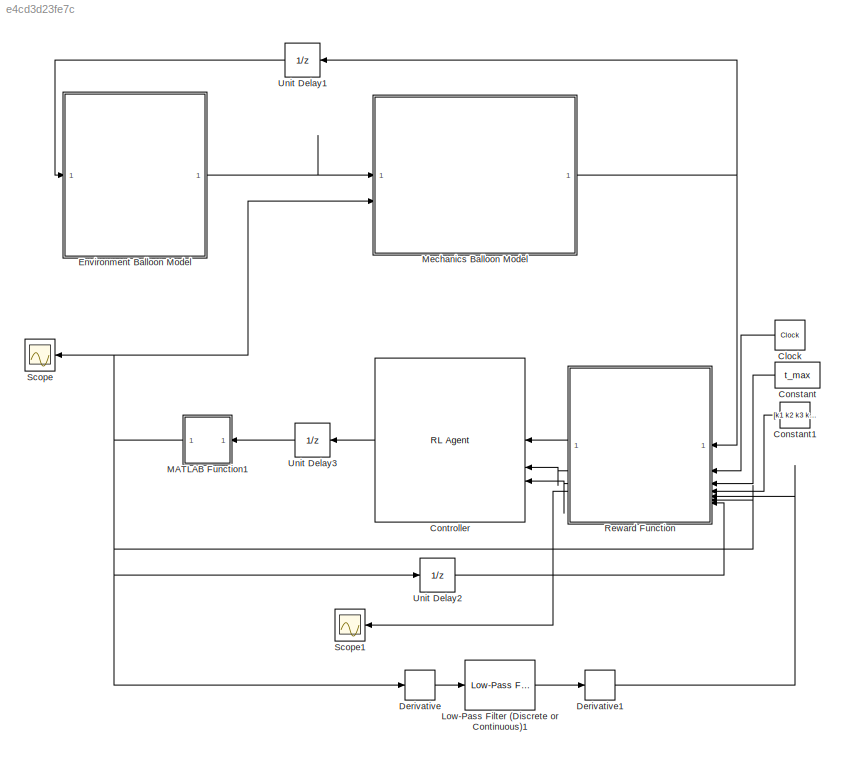
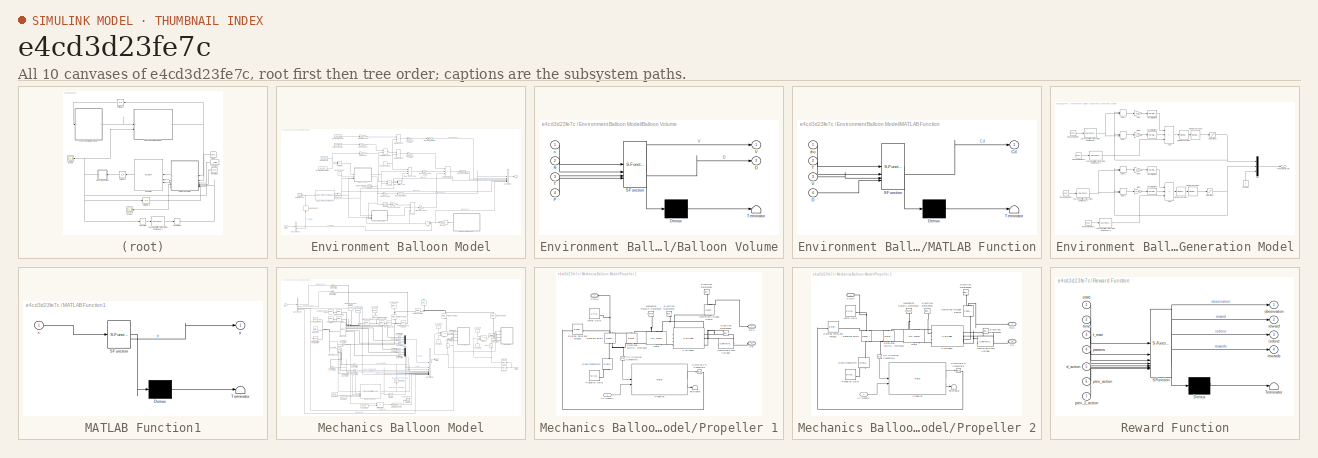
[diagram: thumbnail index - all 10 canvases of the model, root first then tree order]
MODEL slx_e4cd3d23fe7c
KIND model
CONFIG AbsTol = auto
CONFIG EnableMultiTasking = off
CONFIG FixedStep = 0.0001
CONFIG MaxStep = auto
CONFIG MinStep = auto
CONFIG RelTol = 1e-3
CONFIG SampleTimeConstraint = Unconstrained
CONFIG SolverName = VariableStepAuto
CONFIG StartTime = 0.0
CONFIG StopTime = 10
BLOCK [Clock] Clock
  NameLocation = top
BLOCK [Constant] Constant
  NameLocation = top
  Value = t_max
BLOCK [Constant] Constant1
  NameLocation = top
  Value = [k1 k2 k3 k4 k5 k6]
BLOCK [Reference] Controller  REF=rllib/RL Agent
  SourceBlock = rllib/RL Agent
  SourceType = RL Agent
BLOCK [Derivative] Derivative
BLOCK [Derivative] Derivative1
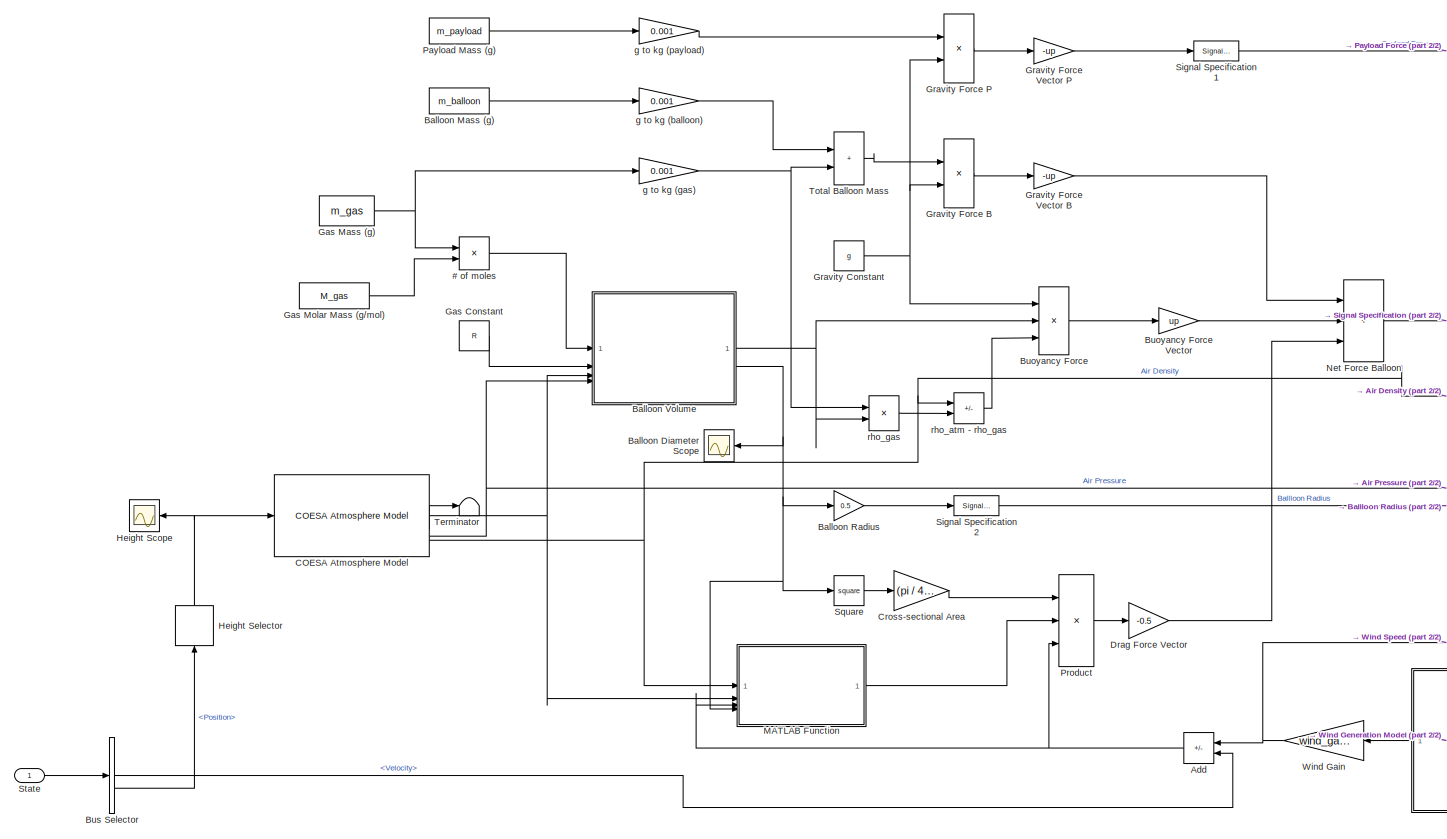
[diagram: Environment Balloon Model - part 1/2, most of the canvas]
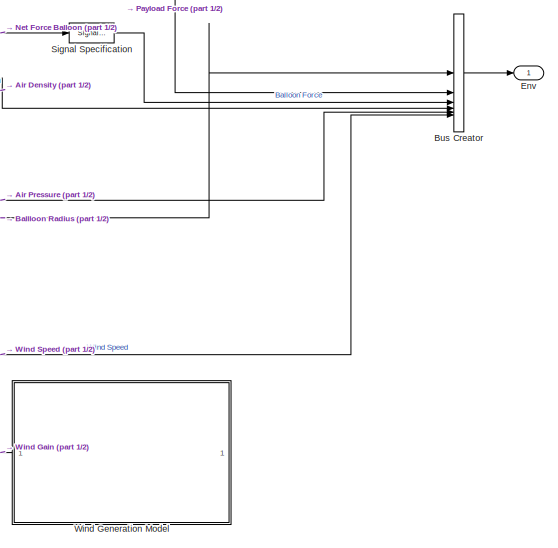
[diagram: Environment Balloon Model - part 2/2, bottom right region]
BLOCK [SubSystem] Environment Balloon Model
BLOCK [Product] Environment Balloon Model/# of moles
  Inputs = */
BLOCK [Sum] Environment Balloon Model/Add
  IconShape = rectangular
  Inputs = -+
  NameLocation = top
BLOCK [Scope] Environment Balloon Model/Balloon Diameter Scope
  Floating = off
  NameLocation = top
  NumInputPorts = 1
  ScopeSpecificationString = Simulink.scopes.TimeScopeBlockCfg('CurrentConfiguration', extmgr.ConfigurationSet(extmgr.Configuration('Core','General UI',true),extmgr.Configuration('Core','Source UI',true),extmgr.Configuration('Sources','WiredSimulink',true,'DataLoggingVariableName','ScopeData1'),extmgr.Configuration('Visuals','Time Domain',true,'SerializedDisplays',{struct('MinYLimReal','5.13047','MaxYLimReal','5.13111','YLabe...<+1831ch>
BLOCK [Constant] Environment Balloon Model/Balloon Mass (g)
  Value = m_balloon
BLOCK [Gain] Environment Balloon Model/Balloon Radius
  Gain = 0.5
BLOCK [SubSystem] Environment Balloon Model/Balloon Volume
  ErrorFcn = Stateflow.Translate.translate
  PermitHierarchicalResolution = ExplicitOnly
  SFBlockType = MATLAB Function
  TreatAsAtomicUnit = on
BLOCK [Demux] Environment Balloon Model/Balloon Volume/ Demux 
  Outputs = 1
BLOCK [S-Function] Environment Balloon Model/Balloon Volume/ SFunction 
  EnableBusSupport = on
  FunctionName = sf_sfun
  PortCounts = [4 3]
  SFcnIsStateOwnerBlock = off
  SFunctionDeploymentMode = off
  Tag = Stateflow S-Function 2
BLOCK [Terminator] Environment Balloon Model/Balloon Volume/ Terminator 
BLOCK [Outport] Environment Balloon Model/Balloon Volume/D
  Port = 2
BLOCK [Inport] Environment Balloon Model/Balloon Volume/P
  Port = 4
BLOCK [Inport] Environment Balloon Model/Balloon Volume/R
  Port = 2
BLOCK [Inport] Environment Balloon Model/Balloon Volume/T
  Port = 3
BLOCK [Outport] Environment Balloon Model/Balloon Volume/V
BLOCK [Inport] Environment Balloon Model/Balloon Volume/n
BLOCK [Product] Environment Balloon Model/Buoyancy Force
  Inputs = 3
BLOCK [Gain] Environment Balloon Model/Buoyancy Force Vector
  Gain = up
BLOCK [BusCreator] Environment Balloon Model/Bus Creator
  DisplayOption = bar
  InheritFromInputs = on
  Inputs = 6
BLOCK [BusSelector] Environment Balloon Model/Bus Selector
  OutputSignals = Velocity,Position
BLOCK [Reference] Environment Balloon Model/COESA Atmosphere Model  REF=aerolibatmos2/COESA Atmosphere Model
  SourceBlock = aerolibatmos2/COESA Atmosphere Model
  SourceType = Atmosphere Model
BLOCK [Gain] Environment Balloon Model/Cross-sectional Area
  Gain = (pi / 4.)
BLOCK [Gain] Environment Balloon Model/Drag Force Vector
  Gain = -0.5
BLOCK [Outport] Environment Balloon Model/Env
BLOCK [Constant] Environment Balloon Model/Gas Constant
  Value = R
  VectorParams1D = off
BLOCK [Constant] Environment Balloon Model/Gas Mass (g)
  Value = m_gas
BLOCK [Constant] Environment Balloon Model/Gas Molar Mass (g//mol)
  Value = M_gas
BLOCK [Constant] Environment Balloon Model/Gravity Constant
  Value = g
BLOCK [Product] Environment Balloon Model/Gravity Force B
BLOCK [Product] Environment Balloon Model/Gravity Force P
BLOCK [Gain] Environment Balloon Model/Gravity Force Vector B
  Gain = -up
BLOCK [Gain] Environment Balloon Model/Gravity Force Vector P
  Gain = -up
BLOCK [Scope] Environment Balloon Model/Height Scope
  Floating = off
  NameLocation = top
  NumInputPorts = 1
  ScopeSpecificationString = Simulink.scopes.TimeScopeBlockCfg('CurrentConfiguration', extmgr.ConfigurationSet(extmgr.Configuration('Core','General UI',true),extmgr.Configuration('Core','Source UI',true),extmgr.Configuration('Sources','WiredSimulink',true,'DataLoggingVariableName','ScopeData1'),extmgr.Configuration('Visuals','Time Domain',true,'SerializedDisplays',{struct('MinYLimReal','19505.50311','MaxYLimReal','19507.91398...<+1859ch>
BLOCK [Selector] Environment Balloon Model/Height Selector
  IndexOptions = Index vector (dialog)
  Indices = 3
  InputPortWidth = 3
  NameLocation = right
  OutputSizes = 1
BLOCK [SubSystem] Environment Balloon Model/MATLAB Function
  ErrorFcn = Stateflow.Translate.translate
  PermitHierarchicalResolution = ExplicitOnly
  SFBlockType = MATLAB Function
  TreatAsAtomicUnit = on
BLOCK [Demux] Environment Balloon Model/MATLAB Function/ Demux 
  Outputs = 1
BLOCK [S-Function] Environment Balloon Model/MATLAB Function/ SFunction 
  EnableBusSupport = on
  FunctionName = sf_sfun
  PortCounts = [4 2]
  SFcnIsStateOwnerBlock = off
  SFunctionDeploymentMode = off
  Tag = Stateflow S-Function 1
BLOCK [Terminator] Environment Balloon Model/MATLAB Function/ Terminator 
BLOCK [Outport] Environment Balloon Model/MATLAB Function/Cd
BLOCK [Inport] Environment Balloon Model/MATLAB Function/D
  Port = 4
BLOCK [Inport] Environment Balloon Model/MATLAB Function/T
  Port = 2
BLOCK [Inport] Environment Balloon Model/MATLAB Function/V
  Port = 3
BLOCK [Inport] Environment Balloon Model/MATLAB Function/rho
BLOCK [Sum] Environment Balloon Model/Net Force Balloon
  IconShape = rectangular
  Inputs = +++
BLOCK [Constant] Environment Balloon Model/Payload Mass (g)
  Value = m_payload
BLOCK [Product] Environment Balloon Model/Product
  Inputs = 3
BLOCK [SignalSpecification] Environment Balloon Model/Signal Specification
  Unit = N
BLOCK [SignalSpecification] Environment Balloon Model/Signal Specification1
  Unit = N
BLOCK [SignalSpecification] Environment Balloon Model/Signal Specification2
  Unit = m
BLOCK [Math] Environment Balloon Model/Square
  Operator = square
BLOCK [Inport] Environment Balloon Model/State
BLOCK [Terminator] Environment Balloon Model/Terminator
BLOCK [Sum] Environment Balloon Model/Total Balloon Mass
  IconShape = rectangular
BLOCK [Gain] Environment Balloon Model/Wind Gain
  Gain = wind_gain
  NameLocation = top
BLOCK [SubSystem] Environment Balloon Model/Wind Generation Model
  NameLocation = top
BLOCK [Sum] Environment Balloon Model/Wind Generation Model/Add1
  IconShape = rectangular
  Inputs = +++
BLOCK [Sum] Environment Balloon Model/Wind Generation Model/Add3
  IconShape = rectangular
  Inputs = +++
BLOCK [Constant] Environment Balloon Model/Wind Generation Model/Constant
  NameLocation = right
  Value = 0
BLOCK [Delay] Environment Balloon Model/Wind Generation Model/Delay1
  InitialCondition = 0
  InitialConditionSource = Input port
  InputPortMap = u0,p4
BLOCK [Delay] Environment Balloon Model/Wind Generation Model/Delay2
  DelayLength = 1
  InitialCondition = 0
  InitialConditionSource = Input port
  InputPortMap = u0,p4
  InputProcessing = Columns as channels (frame based)
BLOCK [Delay] Environment Balloon Model/Wind Generation Model/Delay6
  InitialCondition = 0
  InitialConditionSource = Input port
  InputPortMap = u0,p4
BLOCK [Delay] Environment Balloon Model/Wind Generation Model/Delay7
  DelayLength = 1
  InitialCondition = 0
  InitialConditionSource = Input port
  InputPortMap = u0,p4
  InputProcessing = Columns as channels (frame based)
BLOCK [Gain] Environment Balloon Model/Wind Generation Model/Gain1
  Gain = 0.76
BLOCK [Gain] Environment Balloon Model/Wind Generation Model/Gain2
  Gain = 0.5
BLOCK [Gain] Environment Balloon Model/Wind Generation Model/Gain6
  Gain = 0.76
BLOCK [Gain] Environment Balloon Model/Wind Generation Model/Gain7
  Gain = 0.5
BLOCK [Reference] Environment Balloon Model/Wind Generation Model/Low-Pass Filter (Discrete or Continuous)  REF=eeGeneralControl/Low-Pass Filter
(Discrete or Continuous)
  LibrarySourceBlock = ee_sl_lib/General Control/Low-Pass Filter\n(Discrete or Continuous)
  SourceBlock = eeGeneralControl/Low-Pass Filter\n(Discrete or Continuous)
  SourceType = Low-Pass Filter (Discrete or Continuous)
BLOCK [Reference] Environment Balloon Model/Wind Generation Model/Low-Pass Filter (Discrete or Continuous)1  REF=eeGeneralControl/Low-Pass Filter
(Discrete or Continuous)
  LibrarySourceBlock = ee_sl_lib/General Control/Low-Pass Filter\n(Discrete or Continuous)
  SourceBlock = eeGeneralControl/Low-Pass Filter\n(Discrete or Continuous)
  SourceType = Low-Pass Filter (Discrete or Continuous)
BLOCK [Reference] Environment Balloon Model/Wind Generation Model/Low-Pass Filter (Discrete or Continuous)2  REF=eeGeneralControl/Low-Pass Filter
(Discrete or Continuous)
  LibrarySourceBlock = ee_sl_lib/General Control/Low-Pass Filter\n(Discrete or Continuous)
  SourceBlock = eeGeneralControl/Low-Pass Filter\n(Discrete or Continuous)
  SourceType = Low-Pass Filter (Discrete or Continuous)
BLOCK [Reference] Environment Balloon Model/Wind Generation Model/Low-Pass Filter (Discrete or Continuous)3  REF=eeGeneralControl/Low-Pass Filter
(Discrete or Continuous)
  LibrarySourceBlock = ee_sl_lib/General Control/Low-Pass Filter\n(Discrete or Continuous)
  SourceBlock = eeGeneralControl/Low-Pass Filter\n(Discrete or Continuous)
  SourceType = Low-Pass Filter (Discrete or Continuous)
BLOCK [Reference] Environment Balloon Model/Wind Generation Model/Moving Average1  REF=dspstat3/Moving
Average
  SourceBlock = dspstat3/Moving\nAverage
  SourceType = dsp.simulink.MovingAverage
BLOCK [Reference] Environment Balloon Model/Wind Generation Model/Moving Average2  REF=dspstat3/Moving
Average
  SourceBlock = dspstat3/Moving\nAverage
  SourceType = dsp.simulink.MovingAverage
BLOCK [Reference] Environment Balloon Model/Wind Generation Model/Moving Average4  REF=dspstat3/Moving
Average
  SourceBlock = dspstat3/Moving\nAverage
  SourceType = dsp.simulink.MovingAverage
BLOCK [Reference] Environment Balloon Model/Wind Generation Model/Moving Average5  REF=dspstat3/Moving
Average
  SourceBlock = dspstat3/Moving\nAverage
  SourceType = dsp.simulink.MovingAverage
BLOCK [Mux] Environment Balloon Model/Wind Generation Model/Mux
  DisplayOption = bar
  Inputs = 3
BLOCK [Reference] Environment Balloon Model/Wind Generation Model/Normalization1  REF=dspmathops/Normalization
  SourceBlock = dspmathops/Normalization
  SourceType = Normalization
BLOCK [Reference] Environment Balloon Model/Wind Generation Model/Normalization2  REF=dspmathops/Normalization
  SourceBlock = dspmathops/Normalization
  SourceType = Normalization
BLOCK [Reference] Environment Balloon Model/Wind Generation Model/Normalization6  REF=dspmathops/Normalization
  SourceBlock = dspmathops/Normalization
  SourceType = Normalization
BLOCK [Reference] Environment Balloon Model/Wind Generation Model/Normalization7  REF=dspmathops/Normalization
  SourceBlock = dspmathops/Normalization
  SourceType = Normalization
BLOCK [RandomNumber] Environment Balloon Model/Wind Generation Model/Random Number
  SampleTime = 0.1
  Seed = seed + randi(1000)
  Variance = 17.5
BLOCK [RandomNumber] Environment Balloon Model/Wind Generation Model/Random Number1
  SampleTime = 0.1
  Seed = seed + randi(1000)
  Variance = 17.5
BLOCK [RandomNumber] Environment Balloon Model/Wind Generation Model/Random Number2
  SampleTime = 0.1
  Seed = seed + randi(1000)
  Variance = 17.5
BLOCK [RandomNumber] Environment Balloon Model/Wind Generation Model/Random Number3
  SampleTime = 0.1
  Seed = seed + randi(1000)
  Variance = 17.5
BLOCK [Saturate] Environment Balloon Model/Wind Generation Model/Saturation1
  LowerLimit = -6.5
  UpperLimit = 6.5
  ZeroCross = off
BLOCK [Saturate] Environment Balloon Model/Wind Generation Model/Saturation2
  LowerLimit = -6.5
  UpperLimit = 6.5
  ZeroCross = off
BLOCK [Outport] Environment Balloon Model/Wind Generation Model/Wind Velocity (m//s)
BLOCK [Gain] Environment Balloon Model/g to kg (balloon)
  Gain = 0.001
BLOCK [Gain] Environment Balloon Model/g to kg (gas)
  Gain = 0.001
BLOCK [Gain] Environment Balloon Model/g to kg (payload)
  Gain = 0.001
BLOCK [Sum] Environment Balloon Model/rho_atm - rho_gas
  IconShape = rectangular
  Inputs = +-
BLOCK [Product] Environment Balloon Model/rho_gas
  Inputs = */
BLOCK [Reference] Low-Pass Filter (Discrete or Continuous)1  REF=eeGeneralControl/Low-Pass Filter
(Discrete or Continuous)
  LibrarySourceBlock = ee_sl_lib/General Control/Low-Pass Filter\n(Discrete or Continuous)
  SourceBlock = eeGeneralControl/Low-Pass Filter\n(Discrete or Continuous)
  SourceType = Low-Pass Filter (Discrete or Continuous)
BLOCK [SubSystem] MATLAB Function1
  ErrorFcn = Stateflow.Translate.translate
  NameLocation = top
  PermitHierarchicalResolution = ExplicitOnly
  SFBlockType = MATLAB Function
  TreatAsAtomicUnit = on
BLOCK [Demux] MATLAB Function1/ Demux 
  Outputs = 1
BLOCK [S-Function] MATLAB Function1/ SFunction 
  EnableBusSupport = on
  FunctionName = sf_sfun
  PortCounts = [1 2]
  SFcnIsStateOwnerBlock = off
  SFunctionDeploymentMode = off
  Tag = Stateflow S-Function 5
BLOCK [Terminator] MATLAB Function1/ Terminator 
BLOCK [Inport] MATLAB Function1/x
BLOCK [Outport] MATLAB Function1/y
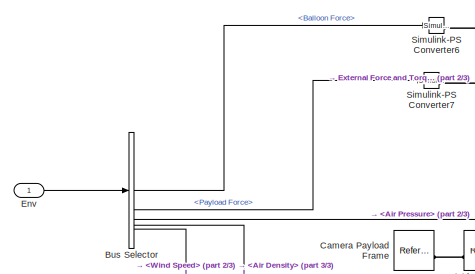
[diagram: Mechanics Balloon Model - part 1/3, top left region]
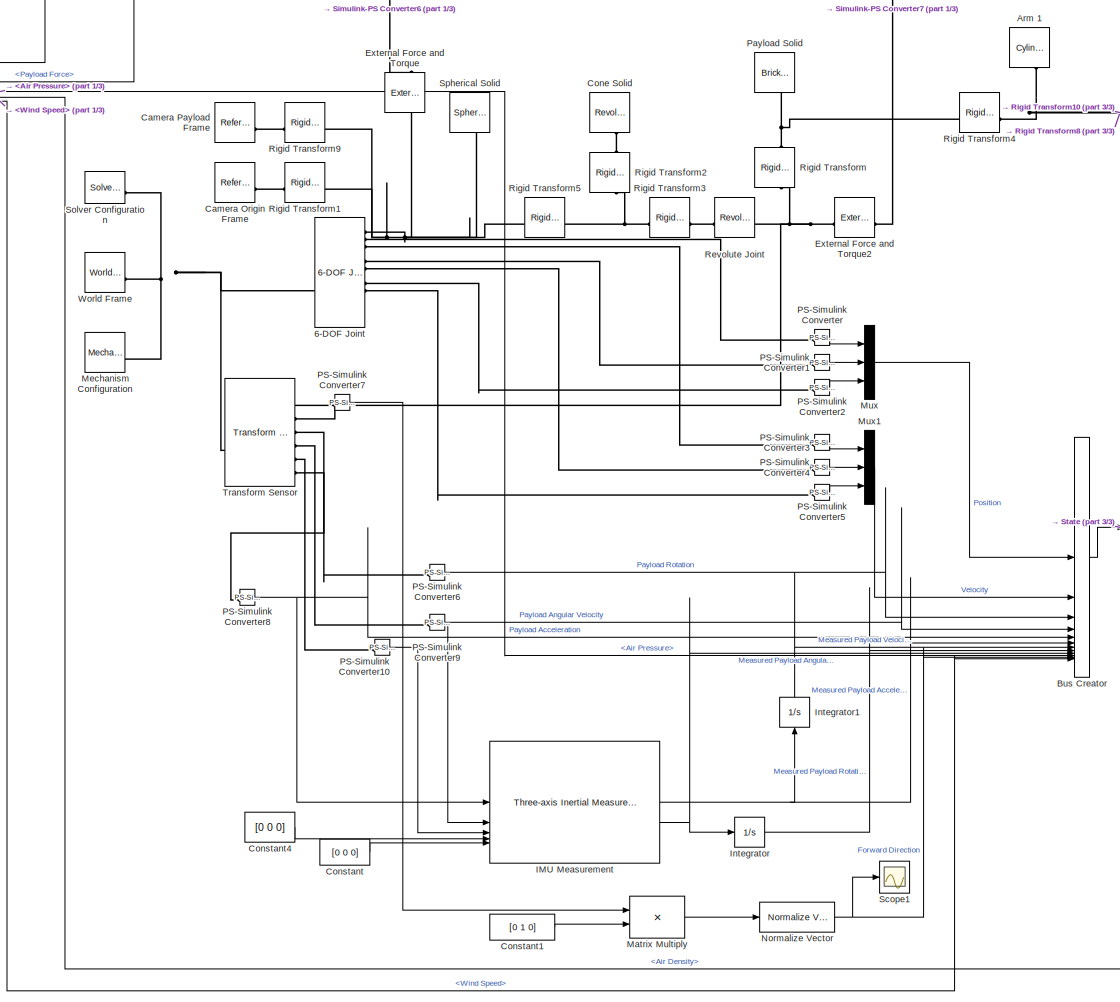
[diagram: Mechanics Balloon Model - part 2/3, center side, full height]
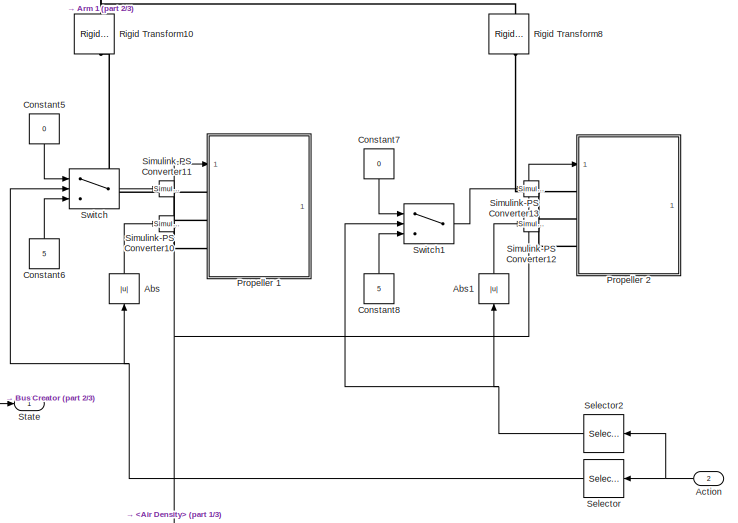
[diagram: Mechanics Balloon Model - part 3/3, middle right region]
BLOCK [SubSystem] Mechanics Balloon Model
BLOCK [Reference] Mechanics Balloon Model/6-DOF Joint  REF=sm_lib/Joints/6-DOF Joint
  SourceBlock = sm_lib/Joints/6-DOF Joint
  SourceType = 6-DOF Joint
BLOCK [Abs] Mechanics Balloon Model/Abs
  NameLocation = right
  SaturateOnIntegerOverflow = off
BLOCK [Abs] Mechanics Balloon Model/Abs1
  NameLocation = right
  SaturateOnIntegerOverflow = off
BLOCK [Inport] Mechanics Balloon Model/Action
  NameLocation = top
  Port = 2
BLOCK [Reference] Mechanics Balloon Model/Arm 1  REF=sm_lib/Body Elements/Cylindrical Solid
  NameLocation = left
  SourceBlock = sm_lib/Body Elements/Cylindrical Solid
  SourceType = Cylindrical Solid
BLOCK [BusCreator] Mechanics Balloon Model/Bus Creator
  DisplayOption = bar
  InheritFromInputs = on
  Inputs = 12
BLOCK [BusSelector] Mechanics Balloon Model/Bus Selector
  OutputSignals = Balloon Force,Payload Force,Air Pressure,Air Density,Wind Speed
BLOCK [Reference] Mechanics Balloon Model/Camera Origin Frame  REF=sm_lib/Frames and
Transforms/Reference
Frame
  SourceBlock = sm_lib/Frames and\nTransforms/Reference\nFrame
  SourceType = Reference\nFrame
BLOCK [Reference] Mechanics Balloon Model/Camera Payload Frame  REF=sm_lib/Frames and
Transforms/Reference
Frame
  SourceBlock = sm_lib/Frames and\nTransforms/Reference\nFrame
  SourceType = Reference\nFrame
BLOCK [Reference] Mechanics Balloon Model/Cone Solid  REF=sm_lib/Body Elements/Revolved Solid
  NameLocation = left
  SourceBlock = sm_lib/Body Elements/Revolved Solid
  SourceType = Revolved Solid
BLOCK [Constant] Mechanics Balloon Model/Constant
  Value = [0 0 0]
BLOCK [Constant] Mechanics Balloon Model/Constant1
  Value = [0 1 0]
BLOCK [Constant] Mechanics Balloon Model/Constant4
  Value = [0 0 0]
BLOCK [Constant] Mechanics Balloon Model/Constant5
  NameLocation = left
  Value = 0
BLOCK [Constant] Mechanics Balloon Model/Constant6
  NameLocation = right
  Value = 5
BLOCK [Constant] Mechanics Balloon Model/Constant7
  NameLocation = left
  Value = 0
BLOCK [Constant] Mechanics Balloon Model/Constant8
  NameLocation = right
  Value = 5
BLOCK [Inport] Mechanics Balloon Model/Env
BLOCK [Reference] Mechanics Balloon Model/External Force and Torque  REF=sm_lib/Forces and
Torques/External Force
and Torque
  NameLocation = left
  SourceBlock = sm_lib/Forces and\nTorques/External Force\nand Torque
  SourceType = External Force\nand Torque
BLOCK [Reference] Mechanics Balloon Model/External Force and Torque2  REF=sm_lib/Forces and
Torques/External Force
and Torque
  NameLocation = top
  SourceBlock = sm_lib/Forces and\nTorques/External Force\nand Torque
  SourceType = External Force\nand Torque
BLOCK [Reference] Mechanics Balloon Model/IMU Measurement  REF=aerolibnav/Three-axis Inertial
Measurement Unit
  SourceBlock = aerolibnav/Three-axis Inertial\nMeasurement Unit
  SourceType = Three-axis Inertial Measurement Unit
BLOCK [Integrator] Mechanics Balloon Model/Integrator
BLOCK [Integrator] Mechanics Balloon Model/Integrator1
  NameLocation = right
BLOCK [Product] Mechanics Balloon Model/Matrix Multiply
  Multiplication = Matrix(*)
BLOCK [Reference] Mechanics Balloon Model/Mechanism Configuration  REF=sm_lib/Utilities/Mechanism
Configuration
  SourceBlock = sm_lib/Utilities/Mechanism\nConfiguration
  SourceType = Mechanism\nConfiguration
BLOCK [Mux] Mechanics Balloon Model/Mux
  DisplayOption = bar
  Inputs = 3
BLOCK [Mux] Mechanics Balloon Model/Mux1
  DisplayOption = bar
  Inputs = 3
BLOCK [Reference] Mechanics Balloon Model/Normalize Vector  REF=vrlib/Utilities/Normalize Vector
  SourceBlock = vrlib/Utilities/Normalize Vector
  SourceType = Normalize Vector
BLOCK [Reference] Mechanics Balloon Model/PS-Simulink Converter  REF=nesl_utility/PS-Simulink
Converter
  SourceBlock = nesl_utility/PS-Simulink\nConverter
  SourceType = PS-Simulink\nConverter
BLOCK [Reference] Mechanics Balloon Model/PS-Simulink Converter1  REF=nesl_utility/PS-Simulink
Converter
  SourceBlock = nesl_utility/PS-Simulink\nConverter
  SourceType = PS-Simulink\nConverter
BLOCK [Reference] Mechanics Balloon Model/PS-Simulink Converter10  REF=nesl_utility/PS-Simulink
Converter
  SourceBlock = nesl_utility/PS-Simulink\nConverter
  SourceType = PS-Simulink\nConverter
BLOCK [Reference] Mechanics Balloon Model/PS-Simulink Converter2  REF=nesl_utility/PS-Simulink
Converter
  SourceBlock = nesl_utility/PS-Simulink\nConverter
  SourceType = PS-Simulink\nConverter
BLOCK [Reference] Mechanics Balloon Model/PS-Simulink Converter3  REF=nesl_utility/PS-Simulink
Converter
  SourceBlock = nesl_utility/PS-Simulink\nConverter
  SourceType = PS-Simulink\nConverter
BLOCK [Reference] Mechanics Balloon Model/PS-Simulink Converter4  REF=nesl_utility/PS-Simulink
Converter
  SourceBlock = nesl_utility/PS-Simulink\nConverter
  SourceType = PS-Simulink\nConverter
BLOCK [Reference] Mechanics Balloon Model/PS-Simulink Converter5  REF=nesl_utility/PS-Simulink
Converter
  SourceBlock = nesl_utility/PS-Simulink\nConverter
  SourceType = PS-Simulink\nConverter
BLOCK [Reference] Mechanics Balloon Model/PS-Simulink Converter6  REF=nesl_utility/PS-Simulink
Converter
  SourceBlock = nesl_utility/PS-Simulink\nConverter
  SourceType = PS-Simulink\nConverter
BLOCK [Reference] Mechanics Balloon Model/PS-Simulink Converter7  REF=nesl_utility/PS-Simulink
Converter
  SourceBlock = nesl_utility/PS-Simulink\nConverter
  SourceType = PS-Simulink\nConverter
BLOCK [Reference] Mechanics Balloon Model/PS-Simulink Converter8  REF=nesl_utility/PS-Simulink
Converter
  SourceBlock = nesl_utility/PS-Simulink\nConverter
  SourceType = PS-Simulink\nConverter
BLOCK [Reference] Mechanics Balloon Model/PS-Simulink Converter9  REF=nesl_utility/PS-Simulink
Converter
  SourceBlock = nesl_utility/PS-Simulink\nConverter
  SourceType = PS-Simulink\nConverter
BLOCK [Reference] Mechanics Balloon Model/Payload Solid  REF=sm_lib/Body Elements/Brick Solid
  NameLocation = left
  SourceBlock = sm_lib/Body Elements/Brick Solid
  SourceType = Brick Solid
BLOCK [SubSystem] Mechanics Balloon Model/Propeller 1
  PortSchema = {"entries":[{"content":{"sides":[{"content":{"connectorIds":["LConn1","LConn2","LConn3","In1"]},"type":"ConnectorPlacement.EquallySpacedRectSide","uuid":"b4c950a6-cb91-440e-b9e8-1c0abd927e4d"},{"content":{"side":"RIGHT"},"type":"ConnectorPlacement.EquallySpacedRectSide","uuid":"b272c975-5631-4542-8f17-cb5d4286abec"},{"content":{"side":"TOP"},"type":"ConnectorPlacement.EquallySpacedRectSide","uuid"...<+225ch>
BLOCK [Inport] Mechanics Balloon Model/Propeller 1/Air Density
BLOCK [PMIOPort] Mechanics Balloon Model/Propeller 1/CONN
  Side = Left
BLOCK [PMIOPort] Mechanics Balloon Model/Propeller 1/CTL
  NameLocation = top
  Port = 3
  Side = Left
BLOCK [Reference] Mechanics Balloon Model/Propeller 1/Controlled PWM Voltage  REF=ee_lib/Integrated Circuits/Controlled PWM
Voltage
  NameLocation = top
  SourceBlock = ee_lib/Integrated Circuits/Controlled PWM\nVoltage
  SourceType = Controlled PWM\nVoltage
BLOCK [Reference] Mechanics Balloon Model/Propeller 1/Controlled Voltage Source  REF=fl_lib/Electrical/Electrical Sources/Controlled Voltage
Source
  NameLocation = right
  SourceBlock = fl_lib/Electrical/Electrical Sources/Controlled Voltage\nSource
  SourceType = Controlled Voltage\nSource
BLOCK [Reference] Mechanics Balloon Model/Propeller 1/Electrical Reference1  REF=fl_lib/Electrical/Electrical Elements/Electrical Reference
  NameLocation = left
  SourceBlock = fl_lib/Electrical/Electrical Elements/Electrical Reference
  SourceType = Electrical Reference
BLOCK [Reference] Mechanics Balloon Model/Propeller 1/Electrical Reference2  REF=fl_lib/Electrical/Electrical Elements/Electrical Reference
  NameLocation = top
  SourceBlock = fl_lib/Electrical/Electrical Elements/Electrical Reference
  SourceType = Electrical Reference
BLOCK [Reference] Mechanics Balloon Model/Propeller 1/Electrical Reference3  REF=fl_lib/Electrical/Electrical Elements/Electrical Reference
  NameLocation = left
  SourceBlock = fl_lib/Electrical/Electrical Elements/Electrical Reference
  SourceType = Electrical Reference
BLOCK [Reference] Mechanics Balloon Model/Propeller 1/External Force and Torque1  REF=sm_lib/Forces and
Torques/External Force
and Torque
  SourceBlock = sm_lib/Forces and\nTorques/External Force\nand Torque
  SourceType = External Force\nand Torque
BLOCK [Reference] Mechanics Balloon Model/Propeller 1/H-Bridge1  REF=ee_lib/Semiconductors &
Converters/Converters/H-Bridge
  NameLocation = top
  SourceBlock = ee_lib/Semiconductors &\nConverters/Converters/H-Bridge
  SourceType = H-Bridge
BLOCK [Reference] Mechanics Balloon Model/Propeller 1/Mechanical Rotational Reference  REF=fl_lib/Mechanical/Rotational Elements/Mechanical
Rotational Reference
  NameLocation = left
  SourceBlock = fl_lib/Mechanical/Rotational Elements/Mechanical\nRotational Reference
  SourceType = Mechanical\nRotational Reference
BLOCK [Reference] Mechanics Balloon Model/Propeller 1/Motor  REF=ee_lib/Electromechanical/Brushed Motors/DC Motor
  NameLocation = left
  SourceBlock = ee_lib/Electromechanical/Brushed Motors/DC Motor
  SourceType = DC Motor
BLOCK [Reference] Mechanics Balloon Model/Propeller 1/Motor Solid  REF=sm_lib/Body Elements/Cylindrical Solid
  SourceBlock = sm_lib/Body Elements/Cylindrical Solid
  SourceType = Cylindrical Solid
BLOCK [Reference] Mechanics Balloon Model/Propeller 1/PS-Simulink Converter6  REF=nesl_utility/PS-Simulink
Converter
  NameLocation = left
  SourceBlock = nesl_utility/PS-Simulink\nConverter
  SourceType = PS-Simulink\nConverter
BLOCK [Rotor] Mechanics Balloon Model/Propeller 1/Propeller
  CQ = propeller_cq
  CT = propeller_ct
  radius = propeller_diameter / 2 * 0.01
BLOCK [Reference] Mechanics Balloon Model/Propeller 1/Propeller Solid  REF=sm_lib/Body Elements/Brick Solid
  SourceBlock = sm_lib/Body Elements/Brick Solid
  SourceType = Brick Solid
BLOCK [PMIOPort] Mechanics Balloon Model/Propeller 1/REV
  NameLocation = top
  Port = 2
  Side = Left
BLOCK [Reference] Mechanics Balloon Model/Propeller 1/Revolute Joint1  REF=sm_lib/Joints/Revolute Joint
  NameLocation = left
  SourceBlock = sm_lib/Joints/Revolute Joint
  SourceType = Revolute Joint
BLOCK [Reference] Mechanics Balloon Model/Propeller 1/Rigid Transform9  REF=sm_lib/Frames and
Transforms/Rigid
Transform
  NameLocation = right
  SourceBlock = sm_lib/Frames and\nTransforms/Rigid\nTransform
  SourceType = Rigid\nTransform
BLOCK [Reference] Mechanics Balloon Model/Propeller 1/Rotational Multibody Interface1  REF=fl_lib/Mechanical/Multibody Interfaces/Rotational Multibody
Interface
  NameLocation = left
  SourceBlock = fl_lib/Mechanical/Multibody Interfaces/Rotational Multibody\nInterface
  SourceType = Rotational Multibody\nInterface
BLOCK [Reference] Mechanics Balloon Model/Propeller 1/Simulink-PS Converter9  REF=nesl_utility/Simulink-PS
Converter
  SourceBlock = nesl_utility/Simulink-PS\nConverter
  SourceType = Simulink-PS\nConverter
BLOCK [Terminator] Mechanics Balloon Model/Propeller 1/Terminator
BLOCK [SubSystem] Mechanics Balloon Model/Propeller 2
  PortSchema = {"entries":[{"content":{"sides":[{"content":{"connectorIds":["LConn1","LConn2","LConn3","In1"]},"type":"ConnectorPlacement.EquallySpacedRectSide","uuid":"e0fc6067-c2a8-4fa2-86aa-f855ae43dcba"},{"content":{"side":"RIGHT"},"type":"ConnectorPlacement.EquallySpacedRectSide","uuid":"a10a43b7-cd86-4c41-868f-3901728caa95"},{"content":{"side":"TOP"},"type":"ConnectorPlacement.EquallySpacedRectSide","uuid"...<+225ch>
BLOCK [Inport] Mechanics Balloon Model/Propeller 2/Air Density
BLOCK [PMIOPort] Mechanics Balloon Model/Propeller 2/CONN
  Side = Left
BLOCK [PMIOPort] Mechanics Balloon Model/Propeller 2/CTL
  NameLocation = top
  Port = 3
  Side = Left
BLOCK [Reference] Mechanics Balloon Model/Propeller 2/Controlled PWM Voltage  REF=ee_lib/Integrated Circuits/Controlled PWM
Voltage
  NameLocation = top
  SourceBlock = ee_lib/Integrated Circuits/Controlled PWM\nVoltage
  SourceType = Controlled PWM\nVoltage
BLOCK [Reference] Mechanics Balloon Model/Propeller 2/Controlled Voltage Source  REF=fl_lib/Electrical/Electrical Sources/Controlled Voltage
Source
  NameLocation = right
  SourceBlock = fl_lib/Electrical/Electrical Sources/Controlled Voltage\nSource
  SourceType = Controlled Voltage\nSource
BLOCK [Reference] Mechanics Balloon Model/Propeller 2/Electrical Reference1  REF=fl_lib/Electrical/Electrical Elements/Electrical Reference
  NameLocation = left
  SourceBlock = fl_lib/Electrical/Electrical Elements/Electrical Reference
  SourceType = Electrical Reference
BLOCK [Reference] Mechanics Balloon Model/Propeller 2/Electrical Reference2  REF=fl_lib/Electrical/Electrical Elements/Electrical Reference
  NameLocation = top
  SourceBlock = fl_lib/Electrical/Electrical Elements/Electrical Reference
  SourceType = Electrical Reference
BLOCK [Reference] Mechanics Balloon Model/Propeller 2/Electrical Reference3  REF=fl_lib/Electrical/Electrical Elements/Electrical Reference
  NameLocation = left
  SourceBlock = fl_lib/Electrical/Electrical Elements/Electrical Reference
  SourceType = Electrical Reference
BLOCK [Reference] Mechanics Balloon Model/Propeller 2/External Force and Torque1  REF=sm_lib/Forces and
Torques/External Force
and Torque
  SourceBlock = sm_lib/Forces and\nTorques/External Force\nand Torque
  SourceType = External Force\nand Torque
BLOCK [Reference] Mechanics Balloon Model/Propeller 2/H-Bridge1  REF=ee_lib/Semiconductors &
Converters/Converters/H-Bridge
  NameLocation = top
  SourceBlock = ee_lib/Semiconductors &\nConverters/Converters/H-Bridge
  SourceType = H-Bridge
BLOCK [Reference] Mechanics Balloon Model/Propeller 2/Mechanical Rotational Reference  REF=fl_lib/Mechanical/Rotational Elements/Mechanical
Rotational Reference
  NameLocation = left
  SourceBlock = fl_lib/Mechanical/Rotational Elements/Mechanical\nRotational Reference
  SourceType = Mechanical\nRotational Reference
BLOCK [Reference] Mechanics Balloon Model/Propeller 2/Motor  REF=ee_lib/Electromechanical/Brushed Motors/DC Motor
  NameLocation = left
  SourceBlock = ee_lib/Electromechanical/Brushed Motors/DC Motor
  SourceType = DC Motor
BLOCK [Reference] Mechanics Balloon Model/Propeller 2/Motor Solid  REF=sm_lib/Body Elements/Cylindrical Solid
  SourceBlock = sm_lib/Body Elements/Cylindrical Solid
  SourceType = Cylindrical Solid
BLOCK [Reference] Mechanics Balloon Model/Propeller 2/PS-Simulink Converter6  REF=nesl_utility/PS-Simulink
Converter
  NameLocation = left
  SourceBlock = nesl_utility/PS-Simulink\nConverter
  SourceType = PS-Simulink\nConverter
BLOCK [Rotor] Mechanics Balloon Model/Propeller 2/Propeller
  CQ = propeller_cq
  CT = propeller_ct
  radius = propeller_diameter / 2 * 0.01
BLOCK [Reference] Mechanics Balloon Model/Propeller 2/Propeller Solid  REF=sm_lib/Body Elements/Brick Solid
  SourceBlock = sm_lib/Body Elements/Brick Solid
  SourceType = Brick Solid
BLOCK [PMIOPort] Mechanics Balloon Model/Propeller 2/REV
  NameLocation = top
  Port = 2
  Side = Left
BLOCK [Reference] Mechanics Balloon Model/Propeller 2/Revolute Joint1  REF=sm_lib/Joints/Revolute Joint
  NameLocation = left
  SourceBlock = sm_lib/Joints/Revolute Joint
  SourceType = Revolute Joint
BLOCK [Reference] Mechanics Balloon Model/Propeller 2/Rigid Transform9  REF=sm_lib/Frames and
Transforms/Rigid
Transform
  NameLocation = right
  SourceBlock = sm_lib/Frames and\nTransforms/Rigid\nTransform
  SourceType = Rigid\nTransform
BLOCK [Reference] Mechanics Balloon Model/Propeller 2/Rotational Multibody Interface1  REF=fl_lib/Mechanical/Multibody Interfaces/Rotational Multibody
Interface
  NameLocation = left
  SourceBlock = fl_lib/Mechanical/Multibody Interfaces/Rotational Multibody\nInterface
  SourceType = Rotational Multibody\nInterface
BLOCK [Reference] Mechanics Balloon Model/Propeller 2/Simulink-PS Converter9  REF=nesl_utility/Simulink-PS
Converter
  SourceBlock = nesl_utility/Simulink-PS\nConverter
  SourceType = Simulink-PS\nConverter
BLOCK [Terminator] Mechanics Balloon Model/Propeller 2/Terminator
BLOCK [Reference] Mechanics Balloon Model/Revolute Joint  REF=sm_lib/Joints/Revolute Joint
  SourceBlock = sm_lib/Joints/Revolute Joint
  SourceType = Revolute Joint
BLOCK [Reference] Mechanics Balloon Model/Rigid Transform  REF=sm_lib/Frames and
Transforms/Rigid
Transform
  NameLocation = left
  SourceBlock = sm_lib/Frames and\nTransforms/Rigid\nTransform
  SourceType = Rigid\nTransform
BLOCK [Reference] Mechanics Balloon Model/Rigid Transform1  REF=sm_lib/Frames and
Transforms/Rigid
Transform
  NameLocation = top
  SourceBlock = sm_lib/Frames and\nTransforms/Rigid\nTransform
  SourceType = Rigid\nTransform
BLOCK [Reference] Mechanics Balloon Model/Rigid Transform10  REF=sm_lib/Frames and
Transforms/Rigid
Transform
  NameLocation = right
  SourceBlock = sm_lib/Frames and\nTransforms/Rigid\nTransform
  SourceType = Rigid\nTransform
BLOCK [Reference] Mechanics Balloon Model/Rigid Transform2  REF=sm_lib/Frames and
Transforms/Rigid
Transform
  NameLocation = left
  SourceBlock = sm_lib/Frames and\nTransforms/Rigid\nTransform
  SourceType = Rigid\nTransform
BLOCK [Reference] Mechanics Balloon Model/Rigid Transform3  REF=sm_lib/Frames and
Transforms/Rigid
Transform
  NameLocation = top
  SourceBlock = sm_lib/Frames and\nTransforms/Rigid\nTransform
  SourceType = Rigid\nTransform
BLOCK [Reference] Mechanics Balloon Model/Rigid Transform4  REF=sm_lib/Frames and
Transforms/Rigid
Transform
  NameLocation = top
  SourceBlock = sm_lib/Frames and\nTransforms/Rigid\nTransform
  SourceType = Rigid\nTransform
BLOCK [Reference] Mechanics Balloon Model/Rigid Transform5  REF=sm_lib/Frames and
Transforms/Rigid
Transform
  SourceBlock = sm_lib/Frames and\nTransforms/Rigid\nTransform
  SourceType = Rigid\nTransform
BLOCK [Reference] Mechanics Balloon Model/Rigid Transform8  REF=sm_lib/Frames and
Transforms/Rigid
Transform
  NameLocation = right
  SourceBlock = sm_lib/Frames and\nTransforms/Rigid\nTransform
  SourceType = Rigid\nTransform
BLOCK [Reference] Mechanics Balloon Model/Rigid Transform9  REF=sm_lib/Frames and
Transforms/Rigid
Transform
  NameLocation = top
  SourceBlock = sm_lib/Frames and\nTransforms/Rigid\nTransform
  SourceType = Rigid\nTransform
BLOCK [Scope] Mechanics Balloon Model/Scope1
  Floating = off
  NumInputPorts = 1
  ScopeSpecificationString = Simulink.scopes.TimeScopeBlockCfg('CurrentConfiguration', extmgr.ConfigurationSet(extmgr.Configuration('Core','General UI',true),extmgr.Configuration('Core','Source UI',true),extmgr.Configuration('Sources','WiredSimulink',true,'DataLoggingVariableName','ScopeData3'),extmgr.Configuration('Visuals','Time Domain',true,'SerializedDisplays',{struct('MinYLimReal','-0.31115','MaxYLimReal','1.14568','YLab...<+1872ch>
BLOCK [Selector] Mechanics Balloon Model/Selector
  IndexOptions = Index vector (dialog)
  Indices = [1]
  InputPortWidth = 2
  NameLocation = top
  OutputSizes = 1
BLOCK [Selector] Mechanics Balloon Model/Selector2
  IndexOptions = Index vector (dialog)
  Indices = [2]
  InputPortWidth = 2
  NameLocation = top
  OutputSizes = 1
BLOCK [Reference] Mechanics Balloon Model/Simulink-PS Converter10  REF=nesl_utility/Simulink-PS
Converter
  SourceBlock = nesl_utility/Simulink-PS\nConverter
  SourceType = Simulink-PS\nConverter
BLOCK [Reference] Mechanics Balloon Model/Simulink-PS Converter11  REF=nesl_utility/Simulink-PS
Converter
  SourceBlock = nesl_utility/Simulink-PS\nConverter
  SourceType = Simulink-PS\nConverter
BLOCK [Reference] Mechanics Balloon Model/Simulink-PS Converter12  REF=nesl_utility/Simulink-PS
Converter
  SourceBlock = nesl_utility/Simulink-PS\nConverter
  SourceType = Simulink-PS\nConverter
BLOCK [Reference] Mechanics Balloon Model/Simulink-PS Converter13  REF=nesl_utility/Simulink-PS
Converter
  SourceBlock = nesl_utility/Simulink-PS\nConverter
  SourceType = Simulink-PS\nConverter
BLOCK [Reference] Mechanics Balloon Model/Simulink-PS Converter6  REF=nesl_utility/Simulink-PS
Converter
  SourceBlock = nesl_utility/Simulink-PS\nConverter
  SourceType = Simulink-PS\nConverter
BLOCK [Reference] Mechanics Balloon Model/Simulink-PS Converter7  REF=nesl_utility/Simulink-PS
Converter
  SourceBlock = nesl_utility/Simulink-PS\nConverter
  SourceType = Simulink-PS\nConverter
BLOCK [Reference] Mechanics Balloon Model/Solver Configuration  REF=nesl_utility/Solver
Configuration
  SourceBlock = nesl_utility/Solver\nConfiguration
  SourceType = Solver\nConfiguration
BLOCK [Reference] Mechanics Balloon Model/Spherical Solid  REF=sm_lib/Body Elements/Spherical Solid
  NameLocation = left
  SourceBlock = sm_lib/Body Elements/Spherical Solid
  SourceType = Spherical Solid
BLOCK [Outport] Mechanics Balloon Model/State
BLOCK [Switch] Mechanics Balloon Model/Switch
  InputSameDT = off
  SaturateOnIntegerOverflow = off
  ZeroCross = off
BLOCK [Switch] Mechanics Balloon Model/Switch1
  InputSameDT = off
  SaturateOnIntegerOverflow = off
  ZeroCross = off
BLOCK [Reference] Mechanics Balloon Model/Transform Sensor  REF=sm_lib/Frames and
Transforms/Transform
Sensor
  NameLocation = top
  SourceBlock = sm_lib/Frames and\nTransforms/Transform\nSensor
  SourceType = Transform\nSensor
BLOCK [Reference] Mechanics Balloon Model/World Frame  REF=sm_lib/Frames and
Transforms/World Frame
  SourceBlock = sm_lib/Frames and\nTransforms/World Frame
  SourceType = World Frame
BLOCK [SubSystem] Reward Function
  ErrorFcn = Stateflow.Translate.translate
  PermitHierarchicalResolution = ExplicitOnly
  SFBlockType = MATLAB Function
  TreatAsAtomicUnit = on
BLOCK [Demux] Reward Function/ Demux 
  Outputs = 1
BLOCK [S-Function] Reward Function/ SFunction 
  EnableBusSupport = on
  FunctionName = sf_sfun
  PortCounts = [7 5]
  SFcnIsStateOwnerBlock = off
  SFunctionDeploymentMode = off
  Tag = Stateflow S-Function 3
BLOCK [Terminator] Reward Function/ Terminator 
BLOCK [Inport] Reward Function/d_action
  Port = 5
BLOCK [Outport] Reward Function/isdone
  Port = 3
BLOCK [Outport] Reward Function/observation
BLOCK [Inport] Reward Function/params
  Port = 4
BLOCK [Inport] Reward Function/prev_2_action
  Port = 7
BLOCK [Inport] Reward Function/prev_action
  Port = 6
BLOCK [Outport] Reward Function/reward
  Port = 2
BLOCK [Outport] Reward Function/rewards
  Port = 4
BLOCK [Inport] Reward Function/state
BLOCK [Inport] Reward Function/t_max
  Port = 3
BLOCK [Inport] Reward Function/time
  Port = 2
BLOCK [Scope] Scope
  Floating = off
  NameLocation = top
  NumInputPorts = 1
  ScopeSpecificationString = Simulink.scopes.TimeScopeBlockCfg('CurrentConfiguration', extmgr.ConfigurationSet(extmgr.Configuration('Core','General UI',true),extmgr.Configuration('Core','Source UI',true),extmgr.Configuration('Sources','WiredSimulink',true,'DataLoggingVariableName','ScopeData2'),extmgr.Configuration('Visuals','Time Domain',true,'SerializedDisplays',{struct('MinYLimReal','0.36881','MaxYLimReal','0.68939','YLabe...<+1527ch>
BLOCK [Scope] Scope1
  Floating = off
  NameLocation = top
  NumInputPorts = 1
  ScopeSpecificationString = Simulink.scopes.TimeScopeBlockCfg('CurrentConfiguration', extmgr.ConfigurationSet(extmgr.Configuration('Core','General UI',true),extmgr.Configuration('Core','Source UI',true),extmgr.Configuration('Sources','WiredSimulink',true,'DataLoggingVariableName','ScopeData1'),extmgr.Configuration('Visuals','Time Domain',true,'SerializedDisplays',{struct('MinYLimReal','-62.77228','MaxYLimReal','13.62036','YL...<+2066ch>
BLOCK [UnitDelay] Unit Delay1
  HasFrameUpgradeWarning = on
  NameLocation = top
  SampleTime = -1
BLOCK [UnitDelay] Unit Delay2
  HasFrameUpgradeWarning = on
  SampleTime = -1
BLOCK [UnitDelay] Unit Delay3
  HasFrameUpgradeWarning = on
  NameLocation = top
  SampleTime = -1
LINE Clock:1 -> Reward Function:2
LINE Constant1:1 -> Reward Function:4
LINE Constant:1 -> Reward Function:3
LINE Controller:1 -> Unit Delay3:1
LINE Derivative1:1 -> Reward Function:5
LINE Derivative:1 -> Low-Pass Filter (Discrete or Continuous)1:1
LINE Environment Balloon Model/# of moles:1 -> Environment Balloon Model/Balloon Volume:1
NET Environment Balloon Model/Add:1 -> Environment Balloon Model/MATLAB Function:3, Environment Balloon Model/Product:3
LINE Environment Balloon Model/Balloon Mass (g):1 -> Environment Balloon Model/g to kg (balloon):1
LINE Environment Balloon Model/Balloon Radius:1 -> Environment Balloon Model/Signal Specification2:1
NET Environment Balloon Model/Balloon Volume:1 -> Environment Balloon Model/Buoyancy Force:2, Environment Balloon Model/rho_gas:2
NET Environment Balloon Model/Balloon Volume:2 -> Environment Balloon Model/Balloon Diameter Scope:1, Environment Balloon Model/Balloon Radius:1, Environment Balloon Model/MATLAB Function:4, Environment Balloon Model/Square:1
LINE Environment Balloon Model/Buoyancy Force Vector:1 -> Environment Balloon Model/Net Force Balloon:2
LINE Environment Balloon Model/Buoyancy Force:1 -> Environment Balloon Model/Buoyancy Force Vector:1
LINE Environment Balloon Model/Bus Creator:1 -> Environment Balloon Model/Env:1
LINE Environment Balloon Model/Bus Selector:1 -> Environment Balloon Model/Add:2
LINE Environment Balloon Model/Bus Selector:2 -> Environment Balloon Model/Height Selector:1
NET Environment Balloon Model/COESA Atmosphere Model:1 -> Environment Balloon Model/Balloon Volume:3, Environment Balloon Model/MATLAB Function:2
LINE Environment Balloon Model/COESA Atmosphere Model:2 -> Environment Balloon Model/Terminator:1
NET Environment Balloon Model/COESA Atmosphere Model:3 -> Environment Balloon Model/Balloon Volume:4, Environment Balloon Model/Bus Creator:5
NET Environment Balloon Model/COESA Atmosphere Model:4 -> Environment Balloon Model/Bus Creator:4, Environment Balloon Model/MATLAB Function:1, Environment Balloon Model/rho_atm - rho_gas:1
LINE Environment Balloon Model/Cross-sectional Area:1 -> Environment Balloon Model/Product:1
LINE Environment Balloon Model/Drag Force Vector:1 -> Environment Balloon Model/Net Force Balloon:3
LINE Environment Balloon Model/Gas Constant:1 -> Environment Balloon Model/Balloon Volume:2
NET Environment Balloon Model/Gas Mass (g):1 -> Environment Balloon Model/# of moles:1, Environment Balloon Model/g to kg (gas):1
LINE Environment Balloon Model/Gas Molar Mass (g//mol):1 -> Environment Balloon Model/# of moles:2
NET Environment Balloon Model/Gravity Constant:1 -> Environment Balloon Model/Buoyancy Force:1, Environment Balloon Model/Gravity Force B:2, Environment Balloon Model/Gravity Force P:2
LINE Environment Balloon Model/Gravity Force B:1 -> Environment Balloon Model/Gravity Force Vector B:1
LINE Environment Balloon Model/Gravity Force P:1 -> Environment Balloon Model/Gravity Force Vector P:1
LINE Environment Balloon Model/Gravity Force Vector B:1 -> Environment Balloon Model/Net Force Balloon:1
LINE Environment Balloon Model/Gravity Force Vector P:1 -> Environment Balloon Model/Signal Specification1:1
NET Environment Balloon Model/Height Selector:1 -> Environment Balloon Model/COESA Atmosphere Model:1, Environment Balloon Model/Height Scope:1
LINE Environment Balloon Model/MATLAB Function:1 -> Environment Balloon Model/Product:2
LINE Environment Balloon Model/Net Force Balloon:1 -> Environment Balloon Model/Signal Specification:1
LINE Environment Balloon Model/Payload Mass (g):1 -> Environment Balloon Model/g to kg (payload):1
LINE Environment Balloon Model/Product:1 -> Environment Balloon Model/Drag Force Vector:1
LINE Environment Balloon Model/Signal Specification1:1 -> Environment Balloon Model/Bus Creator:2
LINE Environment Balloon Model/Signal Specification2:1 -> Environment Balloon Model/Bus Creator:1
LINE Environment Balloon Model/Signal Specification:1 -> Environment Balloon Model/Bus Creator:3
LINE Environment Balloon Model/Square:1 -> Environment Balloon Model/Cross-sectional Area:1
LINE Environment Balloon Model/State:1 -> Environment Balloon Model/Bus Selector:1
LINE Environment Balloon Model/Total Balloon Mass:1 -> Environment Balloon Model/Gravity Force B:1
NET Environment Balloon Model/Wind Gain:1 -> Environment Balloon Model/Add:1, Environment Balloon Model/Bus Creator:6
LINE Environment Balloon Model/Wind Generation Model/Add1:1 -> Environment Balloon Model/Wind Generation Model/Moving Average1:1
LINE Environment Balloon Model/Wind Generation Model/Add3:1 -> Environment Balloon Model/Wind Generation Model/Moving Average4:1
LINE Environment Balloon Model/Wind Generation Model/Constant:1 -> Environment Balloon Model/Wind Generation Model/Mux:3
LINE Environment Balloon Model/Wind Generation Model/Delay1:1 -> Environment Balloon Model/Wind Generation Model/Gain2:1
LINE Environment Balloon Model/Wind Generation Model/Delay2:1 -> Environment Balloon Model/Wind Generation Model/Gain1:1
LINE Environment Balloon Model/Wind Generation Model/Delay6:1 -> Environment Balloon Model/Wind Generation Model/Gain7:1
LINE Environment Balloon Model/Wind Generation Model/Delay7:1 -> Environment Balloon Model/Wind Generation Model/Gain6:1
LINE Environment Balloon Model/Wind Generation Model/Gain1:1 -> Environment Balloon Model/Wind Generation Model/Normalization2:1
LINE Environment Balloon Model/Wind Generation Model/Gain2:1 -> Environment Balloon Model/Wind Generation Model/Normalization1:1
LINE Environment Balloon Model/Wind Generation Model/Gain6:1 -> Environment Balloon Model/Wind Generation Model/Normalization7:1
LINE Environment Balloon Model/Wind Generation Model/Gain7:1 -> Environment Balloon Model/Wind Generation Model/Normalization6:1
NET Environment Balloon Model/Wind Generation Model/Low-Pass Filter (Discrete or Continuous)1:1 -> Environment Balloon Model/Wind Generation Model/Delay1:2, Environment Balloon Model/Wind Generation Model/Delay2:2
LINE Environment Balloon Model/Wind Generation Model/Low-Pass Filter (Discrete or Continuous)2:1 -> Environment Balloon Model/Wind Generation Model/Add1:3
LINE Environment Balloon Model/Wind Generation Model/Low-Pass Filter (Discrete or Continuous)3:1 -> Environment Balloon Model/Wind Generation Model/Add3:3
NET Environment Balloon Model/Wind Generation Model/Low-Pass Filter (Discrete or Continuous):1 -> Environment Balloon Model/Wind Generation Model/Delay6:2, Environment Balloon Model/Wind Generation Model/Delay7:2
LINE Environment Balloon Model/Wind Generation Model/Moving Average1:1 -> Environment Balloon Model/Wind Generation Model/Moving Average2:1
LINE Environment Balloon Model/Wind Generation Model/Moving Average2:1 -> Environment Balloon Model/Wind Generation Model/Saturation1:1
LINE Environment Balloon Model/Wind Generation Model/Moving Average4:1 -> Environment Balloon Model/Wind Generation Model/Moving Average5:1
LINE Environment Balloon Model/Wind Generation Model/Moving Average5:1 -> Environment Balloon Model/Wind Generation Model/Saturation2:1
LINE Environment Balloon Model/Wind Generation Model/Mux:1 -> Environment Balloon Model/Wind Generation Model/Wind Velocity (m//s):1
LINE Environment Balloon Model/Wind Generation Model/Normalization1:1 -> Environment Balloon Model/Wind Generation Model/Add1:1
LINE Environment Balloon Model/Wind Generation Model/Normalization2:1 -> Environment Balloon Model/Wind Generation Model/Add1:2
LINE Environment Balloon Model/Wind Generation Model/Normalization6:1 -> Environment Balloon Model/Wind Generation Model/Add3:1
LINE Environment Balloon Model/Wind Generation Model/Normalization7:1 -> Environment Balloon Model/Wind Generation Model/Add3:2
LINE Environment Balloon Model/Wind Generation Model/Random Number1:1 -> Environment Balloon Model/Wind Generation Model/Low-Pass Filter (Discrete or Continuous)1:1
LINE Environment Balloon Model/Wind Generation Model/Random Number2:1 -> Environment Balloon Model/Wind Generation Model/Low-Pass Filter (Discrete or Continuous)2:1
LINE Environment Balloon Model/Wind Generation Model/Random Number3:1 -> Environment Balloon Model/Wind Generation Model/Low-Pass Filter (Discrete or Continuous)3:1
LINE Environment Balloon Model/Wind Generation Model/Random Number:1 -> Environment Balloon Model/Wind Generation Model/Low-Pass Filter (Discrete or Continuous):1
NET Environment Balloon Model/Wind Generation Model/Saturation1:1 -> Environment Balloon Model/Wind Generation Model/Delay1:1, Environment Balloon Model/Wind Generation Model/Delay2:1, Environment Balloon Model/Wind Generation Model/Mux:2
NET Environment Balloon Model/Wind Generation Model/Saturation2:1 -> Environment Balloon Model/Wind Generation Model/Delay6:1, Environment Balloon Model/Wind Generation Model/Delay7:1, Environment Balloon Model/Wind Generation Model/Mux:1
LINE Environment Balloon Model/Wind Generation Model:1 -> Environment Balloon Model/Wind Gain:1
LINE Environment Balloon Model/g to kg (balloon):1 -> Environment Balloon Model/Total Balloon Mass:1
NET Environment Balloon Model/g to kg (gas):1 -> Environment Balloon Model/Total Balloon Mass:2, Environment Balloon Model/rho_gas:1
LINE Environment Balloon Model/g to kg (payload):1 -> Environment Balloon Model/Gravity Force P:1
LINE Environment Balloon Model/rho_atm - rho_gas:1 -> Environment Balloon Model/Buoyancy Force:3
LINE Environment Balloon Model/rho_gas:1 -> Environment Balloon Model/rho_atm - rho_gas:2
LINE Environment Balloon Model:1 -> Mechanics Balloon Model:1
LINE Low-Pass Filter (Discrete or Continuous)1:1 -> Derivative1:1
NET MATLAB Function1:1 -> Derivative:1, Mechanics Balloon Model:2, Reward Function:6, Scope:1, Unit Delay2:1
LINE Mechanics Balloon Model/Abs1:1 -> Mechanics Balloon Model/Simulink-PS Converter12:1
LINE Mechanics Balloon Model/Abs:1 -> Mechanics Balloon Model/Simulink-PS Converter10:1
NET Mechanics Balloon Model/Action:1 -> Mechanics Balloon Model/Selector2:1, Mechanics Balloon Model/Selector:1
LINE Mechanics Balloon Model/Bus Creator:1 -> Mechanics Balloon Model/State:1
LINE Mechanics Balloon Model/Bus Selector:1 -> Mechanics Balloon Model/Simulink-PS Converter6:1
LINE Mechanics Balloon Model/Bus Selector:2 -> Mechanics Balloon Model/Simulink-PS Converter7:1
LINE Mechanics Balloon Model/Bus Selector:3 -> Mechanics Balloon Model/Bus Creator:10
NET Mechanics Balloon Model/Bus Selector:4 -> Mechanics Balloon Model/Propeller 1:1, Mechanics Balloon Model/Propeller 2:1
LINE Mechanics Balloon Model/Bus Selector:5 -> Mechanics Balloon Model/Bus Creator:12
LINE Mechanics Balloon Model/Constant1:1 -> Mechanics Balloon Model/Matrix Multiply:2
LINE Mechanics Balloon Model/Constant4:1 -> Mechanics Balloon Model/IMU Measurement:4
LINE Mechanics Balloon Model/Constant5:1 -> Mechanics Balloon Model/Switch:1
LINE Mechanics Balloon Model/Constant6:1 -> Mechanics Balloon Model/Switch:3
LINE Mechanics Balloon Model/Constant7:1 -> Mechanics Balloon Model/Switch1:1
LINE Mechanics Balloon Model/Constant8:1 -> Mechanics Balloon Model/Switch1:3
LINE Mechanics Balloon Model/Constant:1 -> Mechanics Balloon Model/IMU Measurement:5
LINE Mechanics Balloon Model/Env:1 -> Mechanics Balloon Model/Bus Selector:1
NET Mechanics Balloon Model/IMU Measurement:1 -> Mechanics Balloon Model/Bus Creator:6, Mechanics Balloon Model/Integrator1:1
NET Mechanics Balloon Model/IMU Measurement:2 -> Mechanics Balloon Model/Bus Creator:9, Mechanics Balloon Model/Integrator:1
LINE Mechanics Balloon Model/Integrator1:1 -> Mechanics Balloon Model/Bus Creator:7
LINE Mechanics Balloon Model/Integrator:1 -> Mechanics Balloon Model/Bus Creator:8
LINE Mechanics Balloon Model/Matrix Multiply:1 -> Mechanics Balloon Model/Normalize Vector:1
LINE Mechanics Balloon Model/Mux1:1 -> Mechanics Balloon Model/Bus Creator:2
LINE Mechanics Balloon Model/Mux:1 -> Mechanics Balloon Model/Bus Creator:1
NET Mechanics Balloon Model/Normalize Vector:1 -> Mechanics Balloon Model/Bus Creator:11, Mechanics Balloon Model/Scope1:1
LINE Mechanics Balloon Model/PS-Simulink Converter10:1 -> Mechanics Balloon Model/IMU Measurement:3
LINE Mechanics Balloon Model/PS-Simulink Converter1:1 -> Mechanics Balloon Model/Mux:2
LINE Mechanics Balloon Model/PS-Simulink Converter2:1 -> Mechanics Balloon Model/Mux:3
LINE Mechanics Balloon Model/PS-Simulink Converter3:1 -> Mechanics Balloon Model/Mux1:1
LINE Mechanics Balloon Model/PS-Simulink Converter4:1 -> Mechanics Balloon Model/Mux1:2
LINE Mechanics Balloon Model/PS-Simulink Converter5:1 -> Mechanics Balloon Model/Mux1:3
LINE Mechanics Balloon Model/PS-Simulink Converter6:1 -> Mechanics Balloon Model/Bus Creator:3
LINE Mechanics Balloon Model/PS-Simulink Converter7:1 -> Mechanics Balloon Model/Matrix Multiply:1
NET Mechanics Balloon Model/PS-Simulink Converter8:1 -> Mechanics Balloon Model/Bus Creator:5, Mechanics Balloon Model/IMU Measurement:1
NET Mechanics Balloon Model/PS-Simulink Converter9:1 -> Mechanics Balloon Model/Bus Creator:4, Mechanics Balloon Model/IMU Measurement:2
LINE Mechanics Balloon Model/PS-Simulink Converter:1 -> Mechanics Balloon Model/Mux:1
LINE Mechanics Balloon Model/Propeller 1/Air Density:1 -> Mechanics Balloon Model/Propeller 1/Propeller:2
LINE Mechanics Balloon Model/Propeller 1/PS-Simulink Converter6:1 -> Mechanics Balloon Model/Propeller 1/Propeller:1
LINE Mechanics Balloon Model/Propeller 1/Propeller:1 -> Mechanics Balloon Model/Propeller 1/Simulink-PS Converter9:1
LINE Mechanics Balloon Model/Propeller 1/Propeller:2 -> Mechanics Balloon Model/Propeller 1/Terminator:1
LINE Mechanics Balloon Model/Propeller 2/Air Density:1 -> Mechanics Balloon Model/Propeller 2/Propeller:2
LINE Mechanics Balloon Model/Propeller 2/PS-Simulink Converter6:1 -> Mechanics Balloon Model/Propeller 2/Propeller:1
LINE Mechanics Balloon Model/Propeller 2/Propeller:1 -> Mechanics Balloon Model/Propeller 2/Simulink-PS Converter9:1
LINE Mechanics Balloon Model/Propeller 2/Propeller:2 -> Mechanics Balloon Model/Propeller 2/Terminator:1
NET Mechanics Balloon Model/Selector2:1 -> Mechanics Balloon Model/Abs1:1, Mechanics Balloon Model/Switch1:2
NET Mechanics Balloon Model/Selector:1 -> Mechanics Balloon Model/Abs:1, Mechanics Balloon Model/Switch:2
LINE Mechanics Balloon Model/Switch1:1 -> Mechanics Balloon Model/Simulink-PS Converter13:1
LINE Mechanics Balloon Model/Switch:1 -> Mechanics Balloon Model/Simulink-PS Converter11:1
NET Mechanics Balloon Model:1 -> Reward Function:1, Unit Delay1:1
LINE Reward Function:1 -> Controller:1
LINE Reward Function:2 -> Controller:2
LINE Reward Function:3 -> Controller:3
LINE Reward Function:4 -> Scope1:1
LINE Unit Delay1:1 -> Environment Balloon Model:1
LINE Unit Delay2:1 -> Reward Function:7
LINE Unit Delay3:1 -> MATLAB Function1:1
PNET net1: Mechanics Balloon Model/6-DOF Joint:LConn1 -- Mechanics Balloon Model/Mechanism Configuration:RConn1 -- Mechanics Balloon Model/Solver Configuration:RConn1 -- Mechanics Balloon Model/Transform Sensor:LConn1 -- Mechanics Balloon Model/World Frame:RConn1
PNET net2: Mechanics Balloon Model/6-DOF Joint:RConn1 -- Mechanics Balloon Model/External Force and Torque:RConn1 -- Mechanics Balloon Model/Rigid Transform1:LConn1 -- Mechanics Balloon Model/Rigid Transform5:LConn1 -- Mechanics Balloon Model/Rigid Transform9:LConn1 -- Mechanics Balloon Model/Spherical Solid:RConn1
PLINE Mechanics Balloon Model/6-DOF Joint:RConn2 -- Mechanics Balloon Model/PS-Simulink Converter:LConn1
PLINE Mechanics Balloon Model/6-DOF Joint:RConn3 -- Mechanics Balloon Model/PS-Simulink Converter3:LConn1
PLINE Mechanics Balloon Model/6-DOF Joint:RConn5 -- Mechanics Balloon Model/PS-Simulink Converter1:LConn1
PLINE Mechanics Balloon Model/6-DOF Joint:RConn6 -- Mechanics Balloon Model/PS-Simulink Converter4:LConn1
PLINE Mechanics Balloon Model/6-DOF Joint:RConn8 -- Mechanics Balloon Model/PS-Simulink Converter2:LConn1
PLINE Mechanics Balloon Model/6-DOF Joint:RConn9 -- Mechanics Balloon Model/PS-Simulink Converter5:LConn1
PNET net3: Mechanics Balloon Model/Arm 1:RConn1 -- Mechanics Balloon Model/Rigid Transform10:RConn1 -- Mechanics Balloon Model/Rigid Transform4:LConn1 -- Mechanics Balloon Model/Rigid Transform8:RConn1
PLINE Mechanics Balloon Model/Camera Origin Frame:RConn1 -- Mechanics Balloon Model/Rigid Transform1:RConn1
PLINE Mechanics Balloon Model/Camera Payload Frame:RConn1 -- Mechanics Balloon Model/Rigid Transform9:RConn1
PLINE Mechanics Balloon Model/Cone Solid:RConn1 -- Mechanics Balloon Model/Rigid Transform2:LConn1
PLINE Mechanics Balloon Model/External Force and Torque2:LConn1 -- Mechanics Balloon Model/Simulink-PS Converter7:RConn1
PNET net4: Mechanics Balloon Model/External Force and Torque2:RConn1 -- Mechanics Balloon Model/Revolute Joint:RConn1 -- Mechanics Balloon Model/Rigid Transform:RConn1 -- Mechanics Balloon Model/Transform Sensor:RConn1
PLINE Mechanics Balloon Model/External Force and Torque:LConn1 -- Mechanics Balloon Model/Simulink-PS Converter6:RConn1
PLINE Mechanics Balloon Model/PS-Simulink Converter10:LConn1 -- Mechanics Balloon Model/Transform Sensor:RConn5
PLINE Mechanics Balloon Model/PS-Simulink Converter6:LConn1 -- Mechanics Balloon Model/Transform Sensor:RConn3
PLINE Mechanics Balloon Model/PS-Simulink Converter7:LConn1 -- Mechanics Balloon Model/Transform Sensor:RConn2
PLINE Mechanics Balloon Model/PS-Simulink Converter8:LConn1 -- Mechanics Balloon Model/Transform Sensor:RConn6
PLINE Mechanics Balloon Model/PS-Simulink Converter9:LConn1 -- Mechanics Balloon Model/Transform Sensor:RConn4
PNET net5: Mechanics Balloon Model/Payload Solid:RConn1 -- Mechanics Balloon Model/Rigid Transform4:RConn1 -- Mechanics Balloon Model/Rigid Transform:LConn1
PNET net6: Mechanics Balloon Model/Propeller 1/CONN:RConn1 -- Mechanics Balloon Model/Propeller 1/External Force and Torque1:RConn1 -- Mechanics Balloon Model/Propeller 1/Motor Solid:RConn1 -- Mechanics Balloon Model/Propeller 1/Revolute Joint1:LConn1
PLINE Mechanics Balloon Model/Propeller 1/CTL:RConn1 -- Mechanics Balloon Model/Propeller 1/Controlled PWM Voltage:LConn1
PLINE Mechanics Balloon Model/Propeller 1/Controlled PWM Voltage:RConn1 -- Mechanics Balloon Model/Propeller 1/H-Bridge1:LConn1
PNET net7: Mechanics Balloon Model/Propeller 1/Controlled PWM Voltage:RConn2 -- Mechanics Balloon Model/Propeller 1/Electrical Reference2:LConn1 -- Mechanics Balloon Model/Propeller 1/H-Bridge1:LConn2 -- Mechanics Balloon Model/Propeller 1/H-Bridge1:LConn4
PLINE Mechanics Balloon Model/Propeller 1/Controlled Voltage Source:LConn1 -- Mechanics Balloon Model/Propeller 1/H-Bridge1:LConn3
PLINE Mechanics Balloon Model/Propeller 1/Controlled Voltage Source:RConn1 -- Mechanics Balloon Model/Propeller 1/REV:RConn1
PLINE Mechanics Balloon Model/Propeller 1/Controlled Voltage Source:RConn2 -- Mechanics Balloon Model/Propeller 1/Electrical Reference3:LConn1
PNET net8: Mechanics Balloon Model/Propeller 1/Electrical Reference1:LConn1 -- Mechanics Balloon Model/Propeller 1/H-Bridge1:RConn2 -- Mechanics Balloon Model/Propeller 1/Motor:RConn1
PLINE Mechanics Balloon Model/Propeller 1/External Force and Torque1:LConn1 -- Mechanics Balloon Model/Propeller 1/Simulink-PS Converter9:RConn1
PLINE Mechanics Balloon Model/Propeller 1/H-Bridge1:RConn1 -- Mechanics Balloon Model/Propeller 1/Motor:LConn1
PNET net9: Mechanics Balloon Model/Propeller 1/Mechanical Rotational Reference:LConn1 -- Mechanics Balloon Model/Propeller 1/Motor:RConn2 -- Mechanics Balloon Model/Propeller 1/Rotational Multibody Interface1:LConn2
PLINE Mechanics Balloon Model/Propeller 1/Motor:LConn2 -- Mechanics Balloon Model/Propeller 1/Rotational Multibody Interface1:RConn2
PNET net10: Mechanics Balloon Model/Propeller 1/PS-Simulink Converter6:LConn1 -- Mechanics Balloon Model/Propeller 1/Revolute Joint1:RConn2 -- Mechanics Balloon Model/Propeller 1/Rotational Multibody Interface1:RConn1
PLINE Mechanics Balloon Model/Propeller 1/Propeller Solid:RConn1 -- Mechanics Balloon Model/Propeller 1/Rigid Transform9:LConn1
PLINE Mechanics Balloon Model/Propeller 1/Revolute Joint1:LConn2 -- Mechanics Balloon Model/Propeller 1/Rotational Multibody Interface1:LConn1
PLINE Mechanics Balloon Model/Propeller 1/Revolute Joint1:RConn1 -- Mechanics Balloon Model/Propeller 1/Rigid Transform9:RConn1
PLINE Mechanics Balloon Model/Propeller 1:LConn1 -- Mechanics Balloon Model/Rigid Transform10:LConn1
PLINE Mechanics Balloon Model/Propeller 1:LConn2 -- Mechanics Balloon Model/Simulink-PS Converter11:RConn1
PLINE Mechanics Balloon Model/Propeller 1:LConn3 -- Mechanics Balloon Model/Simulink-PS Converter10:RConn1
PNET net11: Mechanics Balloon Model/Propeller 2/CONN:RConn1 -- Mechanics Balloon Model/Propeller 2/External Force and Torque1:RConn1 -- Mechanics Balloon Model/Propeller 2/Motor Solid:RConn1 -- Mechanics Balloon Model/Propeller 2/Revolute Joint1:LConn1
PLINE Mechanics Balloon Model/Propeller 2/CTL:RConn1 -- Mechanics Balloon Model/Propeller 2/Controlled PWM Voltage:LConn1
PLINE Mechanics Balloon Model/Propeller 2/Controlled PWM Voltage:RConn1 -- Mechanics Balloon Model/Propeller 2/H-Bridge1:LConn1
PNET net12: Mechanics Balloon Model/Propeller 2/Controlled PWM Voltage:RConn2 -- Mechanics Balloon Model/Propeller 2/Electrical Reference2:LConn1 -- Mechanics Balloon Model/Propeller 2/H-Bridge1:LConn2 -- Mechanics Balloon Model/Propeller 2/H-Bridge1:LConn4
PLINE Mechanics Balloon Model/Propeller 2/Controlled Voltage Source:LConn1 -- Mechanics Balloon Model/Propeller 2/H-Bridge1:LConn3
PLINE Mechanics Balloon Model/Propeller 2/Controlled Voltage Source:RConn1 -- Mechanics Balloon Model/Propeller 2/REV:RConn1
PLINE Mechanics Balloon Model/Propeller 2/Controlled Voltage Source:RConn2 -- Mechanics Balloon Model/Propeller 2/Electrical Reference3:LConn1
PNET net13: Mechanics Balloon Model/Propeller 2/Electrical Reference1:LConn1 -- Mechanics Balloon Model/Propeller 2/H-Bridge1:RConn2 -- Mechanics Balloon Model/Propeller 2/Motor:RConn1
PLINE Mechanics Balloon Model/Propeller 2/External Force and Torque1:LConn1 -- Mechanics Balloon Model/Propeller 2/Simulink-PS Converter9:RConn1
PLINE Mechanics Balloon Model/Propeller 2/H-Bridge1:RConn1 -- Mechanics Balloon Model/Propeller 2/Motor:LConn1
PNET net14: Mechanics Balloon Model/Propeller 2/Mechanical Rotational Reference:LConn1 -- Mechanics Balloon Model/Propeller 2/Motor:RConn2 -- Mechanics Balloon Model/Propeller 2/Rotational Multibody Interface1:LConn2
PLINE Mechanics Balloon Model/Propeller 2/Motor:LConn2 -- Mechanics Balloon Model/Propeller 2/Rotational Multibody Interface1:RConn2
PNET net15: Mechanics Balloon Model/Propeller 2/PS-Simulink Converter6:LConn1 -- Mechanics Balloon Model/Propeller 2/Revolute Joint1:RConn2 -- Mechanics Balloon Model/Propeller 2/Rotational Multibody Interface1:RConn1
PLINE Mechanics Balloon Model/Propeller 2/Propeller Solid:RConn1 -- Mechanics Balloon Model/Propeller 2/Rigid Transform9:LConn1
PLINE Mechanics Balloon Model/Propeller 2/Revolute Joint1:LConn2 -- Mechanics Balloon Model/Propeller 2/Rotational Multibody Interface1:LConn1
PLINE Mechanics Balloon Model/Propeller 2/Revolute Joint1:RConn1 -- Mechanics Balloon Model/Propeller 2/Rigid Transform9:RConn1
PLINE Mechanics Balloon Model/Propeller 2:LConn1 -- Mechanics Balloon Model/Rigid Transform8:LConn1
PLINE Mechanics Balloon Model/Propeller 2:LConn2 -- Mechanics Balloon Model/Simulink-PS Converter13:RConn1
PLINE Mechanics Balloon Model/Propeller 2:LConn3 -- Mechanics Balloon Model/Simulink-PS Converter12:RConn1
PLINE Mechanics Balloon Model/Revolute Joint:LConn1 -- Mechanics Balloon Model/Rigid Transform3:LConn1
PNET net16: Mechanics Balloon Model/Rigid Transform2:RConn1 -- Mechanics Balloon Model/Rigid Transform3:RConn1 -- Mechanics Balloon Model/Rigid Transform5:RConn1
note: NET lines group one-source signal fan-out (src -> all destinations, sorted); 1:1 wires keep LINE; PNET lines group multi-terminal physical nets as a canonical sorted terminal list (undirected conserving connections); 2-terminal nets keep the pairwise PLINE form
CHART Environment Balloon Model/MATLAB Function states=1 transitions=1
  STATE_LABEL 'eML_blk_kernel()'
  STATE_LABEL 'SCRIPT:\nfunction Cd = dragCoefficient(rho, T, V, D)\n    % Calculate the drag coefficient for a sphere\n    % rho: air density (kg/m^3)\n    % T: temperature (K)\n    % V: velocity vector [x y z] (m/s)\n    % D: diameter of the sphere (m)\n\n    % If velocity is zero, set drag coefficient to zero\n    V_mag = norm(V);\n    if V_mag == 0\n        Cd = 0;\n        return;\n    end\n\n    % Compute dynamic viscosi...<+492ch>'
CHART Environment Balloon Model/Balloon Volume states=1 transitions=1
  STATE_LABEL 'eML_blk_kernel()'
  STATE_LABEL 'SCRIPT:\nfunction [V, D] = balloonVolume(n, R, T, P)\n    % Calculate the volume of the gas inside the balloon\n    % n: amount of gas (mol)\n    % R: gas constant (8.314 J/(mol·K))\n    % T: temperature (K)\n    % P: pressure (Pa)\n    V = (n * R * T) / P;\n    D = 2 * (3 * V / (4 * pi)) ^ (1. / 3.);\nend\n'
CHART Reward Function states=1 transitions=1
  STATE_LABEL 'eML_blk_kernel()'
  STATE_LABEL 'SCRIPT:\nfunction [observation, reward, isdone, rewards] = computeReward(state, time, t_max, params, d_action, prev_action, prev_2_action)\n    x = state(1:3);                                 % Position\n    v = state(4:6);                                 % Velocity\n    orientation = state(7:9);                       % Payload orientation (roll, pitch, yaw)\n    angular_velocity = state(10:12);       ...<+2929ch>'
CHART MATLAB Function1 states=1 transitions=1
  STATE_LABEL 'eML_blk_kernel()'
  STATE_LABEL 'SCRIPT:\nfunction y = sigmoid(x)\n    y = 1 ./ (1 + exp(-x));\nend'
CHART  states=0 transitions=0
CHART  states=0 transitions=0
CHART  states=0 transitions=0
CHART  states=0 transitions=0
